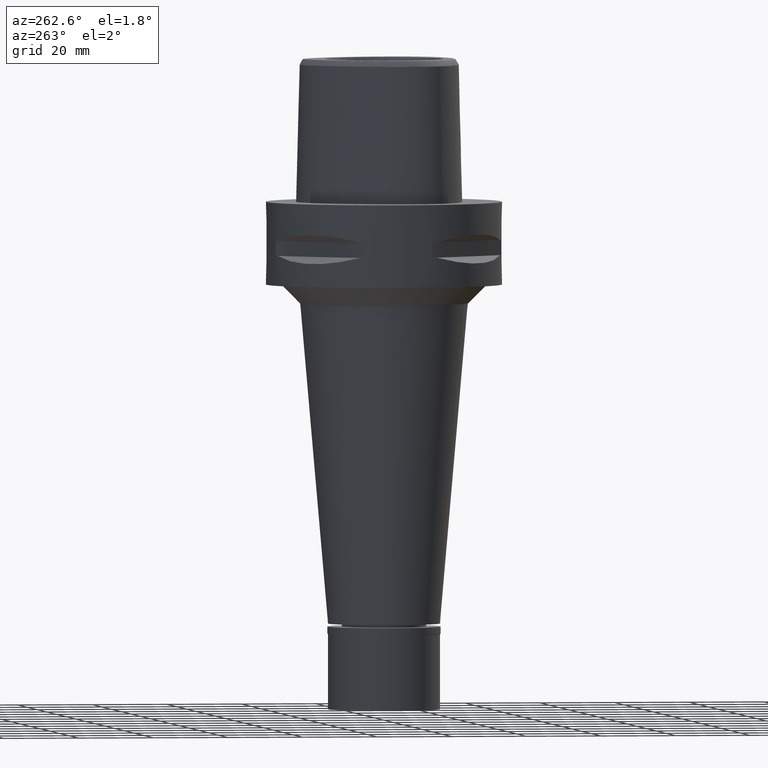
[diagram: clean part render]
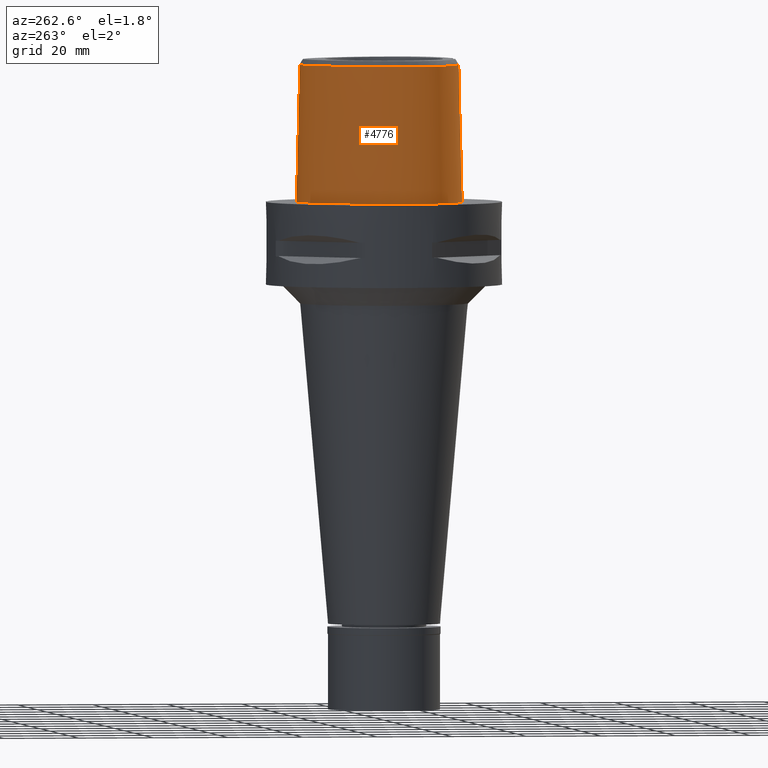
[diagram: same view with one face highlighted and labeled with its STEP entity id]
A machine part, auxiliary view. The second image highlights one B-rep face of the part: STEP entity #4776.
In plain terms, the highlighted face is a freeform B-spline surface patch.
Its self-contained STEP definition (entity closure, byte-faithful):
#2 = CARTESIAN_POINT ( 'NONE',  ( -2.696415149898497621, -20.10825975497923679, 18.52316981035199817 ) ) ;
#16 = CARTESIAN_POINT ( 'NONE',  ( -18.89485259573000064, -12.27684360070000125, 37.25233122954000464 ) ) ;
#38 = CARTESIAN_POINT ( 'NONE',  ( -10.75753574118999900, 19.18839676113000081, -0.7304378672458999855 ) ) ;
#46 = CARTESIAN_POINT ( 'NONE',  ( -1.222079501497006504, -20.16967619644332643, 19.36182732690497943 ) ) ;
#58 = CARTESIAN_POINT ( 'NONE',  ( -4.750826088121999469, 21.65775772739999638, 37.25233122954000464 ) ) ;
#66 = CARTESIAN_POINT ( 'NONE',  ( -3.686560471766106684, -20.05088322548401791, 17.17709135335207904 ) ) ;
#79 = CARTESIAN_POINT ( 'NONE',  ( -0.7901461696973771653, 22.56201478746648448, 36.52186244848002872 ) ) ;
#83 = CARTESIAN_POINT ( 'NONE',  ( -19.66427015006999923, -12.83600704949000004, -0.7304378672458999855 ) ) ;
#98 = CARTESIAN_POINT ( 'NONE',  ( -3.744859968352620250, -20.12555785049274348, 13.95773689203772960 ) ) ;
#110 = ORIENTED_EDGE ( 'NONE', *, *, #2453, .T. ) ;
#111 = CARTESIAN_POINT ( 'NONE',  ( -6.175998544962999048, -19.37631763026000087, 37.25233122954000464 ) ) ;
#120 = CARTESIAN_POINT ( 'NONE',  ( -3.388781880797233637, -20.17907268769692308, 13.28211842279118393 ) ) ;
#131 = CARTESIAN_POINT ( 'NONE',  ( -6.344715577530000594, -20.31619965430999741, -0.7304378672458999855 ) ) ;
#141 = CARTESIAN_POINT ( 'NONE',  ( -3.377353639916970796, -20.18061854612786377, 13.26476903757086845 ) ) ;
#144 = CARTESIAN_POINT ( 'NONE',  ( -1.251533273949746894, -19.88005341379766122, 31.80000012753028571 ) ) ;
#153 = CARTESIAN_POINT ( 'NONE',  ( -6.288476566674999546, -20.00290564628999945, 11.93048516502000034 ) ) ;
#160 = EDGE_CURVE ( 'NONE', #1015, #3632, #1603, .T. ) ;
#167 = CARTESIAN_POINT ( 'NONE',  ( -3.862607746689350474, -20.10460055501470578, 14.28038032241866873 ) ) ;
#173 = CARTESIAN_POINT ( 'NONE',  ( -2.503154198992743051, -19.81241979316217439, 31.80000012753028571 ) ) ;
#190 = CARTESIAN_POINT ( 'NONE',  ( -3.755562140673116556, -20.12374194796142390, 13.98397501487587746 ) ) ;
#199 = CARTESIAN_POINT ( 'NONE',  ( -16.95889172207992246, -15.67838866697177735, 2.483871594191090770E-07 ) ) ;
#203 = CARTESIAN_POINT ( 'NONE',  ( -14.36818022355000046, -16.67825710904000047, 24.59140819727999983 ) ) ;
#354 = CARTESIAN_POINT ( 'NONE',  ( -7.554098293773000222E-12, -20.67499999999999716, 5.802765675373999636E-14 ) ) ;
#368 = CARTESIAN_POINT ( 'NONE',  ( -4.987110641277000767, 22.24795274030999792, 11.93048516502000034 ) ) ;
#378 = CARTESIAN_POINT ( 'NONE',  ( -0.2473412322776364636, -20.18628283968999781, 19.55000000000000071 ) ) ;
#390 = CARTESIAN_POINT ( 'NONE',  ( 0.4441906931527999647, 22.53710756570000129, 37.25233122954000464 ) ) ;
#398 = CARTESIAN_POINT ( 'NONE',  ( -3.738021026999630347, -20.04832921641926546, 17.05876513949562678 ) ) ;
#416 = CARTESIAN_POINT ( 'NONE',  ( -5.105252917855000128, 22.54305024677000091, -0.7304378672458999855 ) ) ;
#429 = CARTESIAN_POINT ( 'NONE',  ( -1.768917262170793814, -20.15190475906382161, 19.14568281053294996 ) ) ;
#441 = CARTESIAN_POINT ( 'NONE',  ( -10.14358055024000116, 18.45723393221999942, 37.25233122954000464 ) ) ;
#449 = CARTESIAN_POINT ( 'NONE',  ( -2.857836109605272679, -20.09902107152586126, 18.36973246307368157 ) ) ;
#460 = CARTESIAN_POINT ( 'NONE',  ( -7.108589416785072501, 20.52412325828678874, 36.52186244848002872 ) ) ;
#463 = CARTESIAN_POINT ( 'NONE',  ( -21.26836735500999964, -8.910752227549000537, 11.93048516502000034 ) ) ;
#473 = CARTESIAN_POINT ( 'NONE',  ( -4.001055636211795274, -20.04208398455366336, 16.14154222857165522 ) ) ;
#489 = CARTESIAN_POINT ( 'NONE',  ( 2.041042029990999821E-08, -19.88004246002000031, 31.80000004972000127 ) ) ;
#505 = CARTESIAN_POINT ( 'NONE',  ( -3.438474044888220948, -20.17226853620289262, 13.35950353148342629 ) ) ;
#529 = CARTESIAN_POINT ( 'NONE',  ( -3.788010122577050609, -20.11815763408466040, 14.06624340820800256 ) ) ;
#551 = CARTESIAN_POINT ( 'NONE',  ( -3.215358272888210855, -20.20174660046934889, 13.03391498473856558 ) ) ;
#558 = CARTESIAN_POINT ( 'NONE',  ( -21.97832647171494003, -0.2810937510864339739, 2.483871594191090770E-07 ) ) ;
#561 = CARTESIAN_POINT ( 'NONE',  ( -21.14970188363479053, -6.717195958887645091, 36.52186244848002872 ) ) ;
#567 = ORIENTED_EDGE ( 'NONE', *, *, #1986, .T. ) ;
#594 = CARTESIAN_POINT ( 'NONE',  ( 0.4479792473561999833, -20.05810136994000104, 24.59140819727999983 ) ) ;
#654 = B_SPLINE_CURVE_WITH_KNOTS ( 'NONE', 3,
 ( #1364, #144, #173, #2922 ),
 .UNSPECIFIED., .F., .F.,
 ( 4, 4 ),
 ( 0.0000000000000000000, 1.000000000000000000 ),
 .UNSPECIFIED. ) ;
#690 = ORIENTED_EDGE ( 'NONE', *, *, #4559, .T. ) ;
#722 = CARTESIAN_POINT ( 'NONE',  ( 0.7042335231630000303, 23.15549812958000331, 11.93048516502000034 ) ) ;
#754 = CARTESIAN_POINT ( 'NONE',  ( -21.68301094665999784, -0.3332744150445000053, 11.93048516502000034 ) ) ;
#766 = CARTESIAN_POINT ( 'NONE',  ( -2.141634863661368460, -20.13611892945429815, 18.93776449056523248 ) ) ;
#781 = CARTESIAN_POINT ( 'NONE',  ( -13.69241955327999882, 15.03666371597999962, 37.25233122954000464 ) ) ;
#789 = CARTESIAN_POINT ( 'NONE',  ( -3.704467467891571886, -20.04996865237282222, 17.13733399074459030 ) ) ;
#806 = CARTESIAN_POINT ( 'NONE',  ( -20.76670355358000108, 4.663413655593999785, -0.7304378672458999855 ) ) ;
#827 = ORIENTED_EDGE ( 'NONE', *, *, #3703, .F. ) ;
#834 = CARTESIAN_POINT ( 'NONE',  ( -7.099337617061999950, 20.50831363474999947, 37.25233122954000464 ) ) ;
#845 = CARTESIAN_POINT ( 'NONE',  ( -1.320565687274587896, -20.16697761691573376, 19.32976498246027575 ) ) ;
#859 = CARTESIAN_POINT ( 'NONE',  ( -0.5657070178351000234, 22.56734879639000013, 37.25233122954000464 ) ) ;
#871 = CARTESIAN_POINT ( 'NONE',  ( -3.637738201363999835, -19.56971413236999879, 36.52186244848000030 ) ) ;
#913 = CARTESIAN_POINT ( 'NONE',  ( 0.4520368072134999804, -20.37458452970999900, 11.93048516502000034 ) ) ;
#925 = CARTESIAN_POINT ( 'NONE',  ( -3.024127618930173345, -20.22444760030267119, 12.80466032897661499 ) ) ;
#933 = CARTESIAN_POINT ( 'NONE',  ( -22.05732873705026265, -6.847636717862386924, 2.483871594191090770E-07 ) ) ;
#938 = CARTESIAN_POINT ( 'NONE',  ( 0.6840430854468000366, -20.68668155455999980, -0.7304378672458999855 ) ) ;
#946 = CARTESIAN_POINT ( 'NONE',  ( -2.945118222697316490, -20.23335776654016271, 12.71958560101062474 ) ) ;
#954 = CARTESIAN_POINT ( 'NONE',  ( -14.22011356156141382, -16.41829364186389029, 36.52186244848002872 ) ) ;
#958 = EDGE_CURVE ( 'NONE', #3691, #4031, #3380, .T. ) ;
#979 = CARTESIAN_POINT ( 'NONE',  ( -20.74942740292559762, 4.657187497882550709, 2.483871594191090770E-07 ) ) ;
#1001 = CARTESIAN_POINT ( 'NONE',  ( -1.592612062467924749, -20.34460894491102678, 11.77623291199328115 ) ) ;
#1014 = CARTESIAN_POINT ( 'NONE',  ( -2.113823672695231526, -20.67499999378846454, 2.483871594191090770E-07 ) ) ;
#1015 = VERTEX_POINT ( 'NONE', #1847 ) ;
#1143 = EDGE_LOOP ( 'NONE', ( #2945, #827, #2549, #110, #4122, #690, #4586, #567 ) ) ;
#1163 = CARTESIAN_POINT ( 'NONE',  ( -3.724287987559554924, -20.04899117660404073, 17.09139312267753041 ) ) ;
#1181 = CARTESIAN_POINT ( 'NONE',  ( -20.36913758053999857, -10.35391836281000089, 24.59140819727999983 ) ) ;
#1193 = CARTESIAN_POINT ( 'NONE',  ( -1.944872162930869397, -20.14473830020673617, 19.05307826098890089 ) ) ;
#1196 = VERTEX_POINT ( 'NONE', #2676 ) ;
#1207 = CARTESIAN_POINT ( 'NONE',  ( -0.5985508145726999851, 23.20171270144999909, 11.93048516502000034 ) ) ;
#1215 = CARTESIAN_POINT ( 'NONE',  ( -2.218923952808330213, -20.13252298611807234, 18.88809933006111308 ) ) ;
#1228 = CARTESIAN_POINT ( 'NONE',  ( -20.09084467959999998, -11.59945458344000002, 11.93048516502000034 ) ) ;
#1254 = CARTESIAN_POINT ( 'NONE',  ( -13.70645028111298380, 15.04851272300510345, 36.52186244848002872 ) ) ;
#1255 = CARTESIAN_POINT ( 'NONE',  ( -10.34823228055999955, 18.70095487519000343, 24.59140819727999983 ) ) ;
#1265 = CARTESIAN_POINT ( 'NONE',  ( -1.543048130379650829, -20.15993798682084304, 19.24453660913642494 ) ) ;
#1275 = CARTESIAN_POINT ( 'NONE',  ( -16.39211280192303732, -14.95758113319121918, 36.52186244848002872 ) ) ;
#1278 = CARTESIAN_POINT ( 'NONE',  ( -21.36961487273000060, -0.3886498146834000411, 24.59140819727999983 ) ) ;
#1291 = CARTESIAN_POINT ( 'NONE',  ( -3.698122373793031770, -20.13343971463974924, 13.84482020408101555 ) ) ;
#1299 = CARTESIAN_POINT ( 'NONE',  ( -18.90964971338106082, -12.28759719904414460, 36.52186244848002872 ) ) ;
#1312 = CARTESIAN_POINT ( 'NONE',  ( -3.830499027157554970, -20.11062698623148393, 14.18153512544096806 ) ) ;
#1329 = CARTESIAN_POINT ( 'NONE',  ( -6.232237555819000185, -19.68961163828000238, 24.59140819727999983 ) ) ;
#1342 = CARTESIAN_POINT ( 'NONE',  ( -3.520475118947735460, -20.16064927175107968, 13.49656734865833840 ) ) ;
#1362 = CARTESIAN_POINT ( 'NONE',  ( -3.294464282139350164, -20.19175818983858051, 13.14063372506664606 ) ) ;
#1364 = CARTESIAN_POINT ( 'NONE',  ( 2.041042029990999821E-08, -19.88004246002000031, 31.80000004972000127 ) ) ;
#1374 = CARTESIAN_POINT ( 'NONE',  ( -11.02138175956000055, -18.31230442588000429, 24.59140819727999983 ) ) ;
#1385 = CARTESIAN_POINT ( 'NONE',  ( -1.678454493255880919, -20.33967188086236888, 11.81405957882842195 ) ) ;
#1394 = CARTESIAN_POINT ( 'NONE',  ( -11.23259756514371865, -18.89324218163431368, 2.483871594191090770E-07 ) ) ;
#1397 = CARTESIAN_POINT ( 'NONE',  ( -1.721503160415000160E-11, 22.56201468012000078, 36.52186680743999858 ) ) ;
#1433 = CARTESIAN_POINT ( 'NONE',  ( 0.4569144474111999643, 22.85341777274000208, 24.59140819727999983 ) ) ;
#1446 = CARTESIAN_POINT ( 'NONE',  ( -14.40795638481364982, 15.64093749597185123, 2.483871594191090770E-07 ) ) ;
#1456 = CARTESIAN_POINT ( 'NONE',  ( 0.6850314009299001139, 22.83959032778000164, 24.59140819727999983 ) ) ;
#1546 = CARTESIAN_POINT ( 'NONE',  ( -1.721503160415000160E-11, 22.56201468012000078, 36.52186680743999858 ) ) ;
#1559 = CARTESIAN_POINT ( 'NONE',  ( -17.53318565155000286, 10.12278922552999916, 24.59140819727999983 ) ) ;
#1591 = CARTESIAN_POINT ( 'NONE',  ( -14.42198652363000022, 15.65278600556999855, -0.7304378672458999855 ) ) ;
#1603 = LINE ( 'NONE', #4221, #2378 ) ;
#1613 = CARTESIAN_POINT ( 'NONE',  ( -20.96392231289000208, -8.820258258568999921, 24.59140819727999983 ) ) ;
#1623 = CARTESIAN_POINT ( 'NONE',  ( -2.236225399043144435, -20.13170464962382411, 18.87669531694537284 ) ) ;
#1634 = CARTESIAN_POINT ( 'NONE',  ( -22.26285557009000016, -4.100361500021000083, -0.7304378672458999855 ) ) ;
#1644 = CARTESIAN_POINT ( 'NONE',  ( 0.0000000000000000000, -20.18628283968999781, 19.55000000000000071 ) ) ;
#1663 = CARTESIAN_POINT ( 'NONE',  ( -1.721503160415000160E-11, 22.56201468012000078, 36.52186680743999858 ) ) ;
#1666 = CARTESIAN_POINT ( 'NONE',  ( -18.58171406929000113, -14.18198046874000084, -0.7304378672458999855 ) ) ;
#1676 = CARTESIAN_POINT ( 'NONE',  ( -4.027530768677416440, -20.06783249596207597, 14.99855479653706603 ) ) ;
#1697 = CARTESIAN_POINT ( 'NONE',  ( -1.758544761682761859, -20.33485355119278992, 11.85123508312911866 ) ) ;
#1707 = CARTESIAN_POINT ( 'NONE',  ( -1.836486879113999882, -19.76356434131000128, 37.25233122954000464 ) ) ;
#1720 = CARTESIAN_POINT ( 'NONE',  ( -2.904838724128873562, -20.23782704190353243, 12.67778573503155748 ) ) ;
#1729 = CARTESIAN_POINT ( 'NONE',  ( 2.041042029990999821E-08, -19.88004246002000031, 31.80000004972000127 ) ) ;
#1743 = CARTESIAN_POINT ( 'NONE',  ( -3.089131642920993404, -20.21685897408069010, 12.88004451868239464 ) ) ;
#1750 = CARTESIAN_POINT ( 'NONE',  ( -20.34961798018169787, -11.74885741876239997, 2.483871594191090770E-07 ) ) ;
#1752 = CARTESIAN_POINT ( 'NONE',  ( 6.840904005482245240E-09, -20.08420636276312976, 23.63333344114113288 ) ) ;
#1764 = CARTESIAN_POINT ( 'NONE',  ( -1.812541018724384001, -20.33144879143460670, 11.87771303033585291 ) ) ;
#1772 = CARTESIAN_POINT ( 'NONE',  ( -14.67337964111153426, -17.21410155709229883, 2.483871594191090770E-07 ) ) ;
#1808 = CARTESIAN_POINT ( 'NONE',  ( 0.4696382016694999884, 23.16972797979000021, 11.93048516502000034 ) ) ;
#1847 = CARTESIAN_POINT ( 'NONE',  ( -9.433993878921999819E-13, -20.38876923348000147, 11.44999999999999929 ) ) ;
#1914 = CARTESIAN_POINT ( 'NONE',  ( -3.736722311398999796, -19.67781602443999844, 31.80000000000000071 ) ) ;
#1931 = CARTESIAN_POINT ( 'NONE',  ( -21.76083705146000113, -6.805026034460000872, 11.93048516502000034 ) ) ;
#1957 = CARTESIAN_POINT ( 'NONE',  ( -0.6149727129413998794, 23.51889465398999945, -0.7304378672458999855 ) ) ;
#1968 = CARTESIAN_POINT ( 'NONE',  ( -3.848403410399269031, -20.04310851184509801, 16.79149714040343966 ) ) ;
#1985 = CARTESIAN_POINT ( 'NONE',  ( -21.99640702058999864, -0.2778990154055000494, -0.7304378672458999855 ) ) ;
#1986 = EDGE_CURVE ( 'NONE', #4031, #3632, #4643, .T. ) ;
#1994 = CARTESIAN_POINT ( 'NONE',  ( -2.360389010909421881, -20.12578017861218527, 18.79373387522312200 ) ) ;
#2005 = CARTESIAN_POINT ( 'NONE',  ( -20.16779720122000086, 4.447573594992999979, 24.59140819727999983 ) ) ;
#2013 = CARTESIAN_POINT ( 'NONE',  ( -3.081149392581320701, -20.08583124627751459, 18.14629112889923235 ) ) ;
#2025 = CARTESIAN_POINT ( 'NONE',  ( -4.757642277158428357, 21.67478330407306686, 36.52186244848002872 ) ) ;
#2028 = CARTESIAN_POINT ( 'NONE',  ( -20.65947727076000007, -8.729764289590001169, 37.25233122954000464 ) ) ;
#2038 = CARTESIAN_POINT ( 'NONE',  ( -4.019649019913691390, -20.04316019033999652, 16.01163126942445913 ) ) ;
#2055 = CARTESIAN_POINT ( 'NONE',  ( 6.820926584186569121E-09, -19.98212988583463812, 27.71666688228196307 ) ) ;
#2058 = CARTESIAN_POINT ( 'NONE',  ( -16.97022731400999973, -15.69280483484999955, -0.7304378672458999855 ) ) ;
#2070 = CARTESIAN_POINT ( 'NONE',  ( -1.975954942202938325, -20.32065689222462979, 11.96260358356428455 ) ) ;
#2092 = CARTESIAN_POINT ( 'NONE',  ( -3.748882549353759863, -20.12487725615873302, 13.96753193210146193 ) ) ;
#2102 = CARTESIAN_POINT ( 'NONE',  ( -1.870070488024999866, -20.39691384964999799, 11.93048516502000034 ) ) ;
#2114 = CARTESIAN_POINT ( 'NONE',  ( -9.433993878921999819E-13, -20.38876923348000147, 11.44999999999999929 ) ) ;
#2126 = CARTESIAN_POINT ( 'NONE',  ( -21.07430010672754150, -0.4408303445193105241, 36.52186244848002872 ) ) ;
#2144 = CARTESIAN_POINT ( 'NONE',  ( -2.870809693610273605, -20.24156730632854817, 12.64324605246994793 ) ) ;
#2153 = CARTESIAN_POINT ( 'NONE',  ( -21.55524825412133083, -8.996025388850016569, 2.483871594191090770E-07 ) ) ;
#2158 = CARTESIAN_POINT ( 'NONE',  ( -16.57726026073000014, -15.19304451834000069, 24.59140819727999983 ) ) ;
#2190 = CARTESIAN_POINT ( 'NONE',  ( -3.671249123513567802, -19.60525173594972514, 34.94790829898666829 ) ) ;
#2316 = CARTESIAN_POINT ( 'NONE',  ( -17.80867301941000136, 10.28184205001000073, 11.93048516502000034 ) ) ;
#2325 = CARTESIAN_POINT ( 'NONE',  ( -3.623054736483445559, -20.05423874947322105, 17.31100359226983443 ) ) ;
#2338 = CARTESIAN_POINT ( 'NONE',  ( -19.54161154040999904, -11.28235468148000109, 37.25233122954000464 ) ) ;
#2347 = CARTESIAN_POINT ( 'NONE',  ( -3.258446753586562661, -20.07522384658319936, 17.91983021284167066 ) ) ;
#2361 = CARTESIAN_POINT ( 'NONE',  ( -7.580410842533000348, 21.33037926697000231, -0.7304378672458999855 ) ) ;
#2378 = VECTOR ( 'NONE', #4717, 1000.000000000000114 ) ;
#2386 = CARTESIAN_POINT ( 'NONE',  ( -19.15132511383999869, -12.46323141696999848, 24.59140819727999983 ) ) ;
#2394 = CARTESIAN_POINT ( 'NONE',  ( -2.852856104024932726, -20.09931387729060859, 18.37467926461876644 ) ) ;
#2408 = CARTESIAN_POINT ( 'NONE',  ( -21.57281239714000165, -9.001246196527999288, -0.7304378672458999855 ) ) ;
#2417 = CARTESIAN_POINT ( 'NONE',  ( -3.732557508995414608, -20.04859144260191783, 17.07180291399404837 ) ) ;
#2434 = CARTESIAN_POINT ( 'NONE',  ( -11.13012653184999934, -18.61140109523000064, 11.93048516502000034 ) ) ;
#2453 = EDGE_CURVE ( 'NONE', #3068, #3853, #654, .T. ) ;
#2464 = CARTESIAN_POINT ( 'NONE',  ( -10.91263698726999998, -18.01320775652999728, 37.25233122954000464 ) ) ;
#2475 = CARTESIAN_POINT ( 'NONE',  ( -3.646271025386952136, -20.14180172674266345, 13.73229968810843893 ) ) ;
#2480 = CARTESIAN_POINT ( 'NONE',  ( -20.93173251642900823, -10.60431640372373607, 2.483871594191090770E-07 ) ) ;
#2485 = CARTESIAN_POINT ( 'NONE',  ( -14.21104784857000070, -16.40237679636999601, 37.25233122954000464 ) ) ;
#2494 = CARTESIAN_POINT ( 'NONE',  ( -4.049848995936167206, -20.05861656952081873, 15.25314035233473398 ) ) ;
#2502 = CARTESIAN_POINT ( 'NONE',  ( -20.09619618741553992, -10.23243843868202418, 36.52186244848002872 ) ) ;
#2514 = CARTESIAN_POINT ( 'NONE',  ( -3.466483550187511753, -20.16833646136333513, 13.40542637771374856 ) ) ;
#2544 = CARTESIAN_POINT ( 'NONE',  ( -0.5047993661863107162, -20.38876923348000147, 11.44999999999999751 ) ) ;
#2549 = ORIENTED_EDGE ( 'NONE', *, *, #4591, .F. ) ;
#2551 = CARTESIAN_POINT ( 'NONE',  ( -7.554098293773000222E-12, -20.67499999999999716, 5.802765675373999636E-14 ) ) ;
#2612 = CARTESIAN_POINT ( 'NONE',  ( 0.6658292786969000066, 22.52368252598999732, 37.25233122954000464 ) ) ;
#2676 = CARTESIAN_POINT ( 'NONE',  ( 0.0000000000000000000, -20.18628283968999781, 19.55000000000000071 ) ) ;
#2699 = CARTESIAN_POINT ( 'NONE',  ( -1.025211814383784725, -20.17465818941732891, 19.42048404905371584 ) ) ;
#2712 = CARTESIAN_POINT ( 'NONE',  ( -20.07948473933999978, -10.22500055825999965, 37.25233122954000464 ) ) ;
#2717 = CARTESIAN_POINT ( 'NONE',  ( 4.563465393014999971E-11, 23.47499999999000053, 5.514107688971999147E-14 ) ) ;
#2723 = CARTESIAN_POINT ( 'NONE',  ( -2.823299992936001868, -20.10104229143708565, 18.40378355436401847 ) ) ;
#2736 = CARTESIAN_POINT ( 'NONE',  ( -14.17879753351000005, 15.44741190903999950, 11.93048516502000034 ) ) ;
#2759 = CARTESIAN_POINT ( 'NONE',  ( -2.438150574154000161, 22.68791625299000358, 24.59140819727999983 ) ) ;
#2770 = CARTESIAN_POINT ( 'NONE',  ( -2.841055161951131058, -20.10000556631501567, 18.38634273631047833 ) ) ;
#2789 = CARTESIAN_POINT ( 'NONE',  ( -10.15538788052766073, 18.47129535093935004, 36.52186244848002872 ) ) ;
#2790 = CARTESIAN_POINT ( 'NONE',  ( -21.62788386333999924, -4.104079499281999333, 24.59140819727999983 ) ) ;
#2799 = CARTESIAN_POINT ( 'NONE',  ( -3.925407708632545400, -20.04099055260236284, 16.53138977182225133 ) ) ;
#2812 = CARTESIAN_POINT ( 'NONE',  ( -4.868968364699999718, 21.95285523385999937, 24.59140819727999983 ) ) ;
#2823 = CARTESIAN_POINT ( 'NONE',  ( -2.887412005234945234, -20.23974548682596719, 12.66003157092543674 ) ) ;
#2834 = CARTESIAN_POINT ( 'NONE',  ( -21.32871527669728806, -4.105831244394278379, 36.52186244848002872 ) ) ;
#2837 = CARTESIAN_POINT ( 'NONE',  ( 0.6657744276083999990, -19.73734233519000369, 37.25233122954000464 ) ) ;
#2847 = CARTESIAN_POINT ( 'NONE',  ( -1.554881956805006515, -20.34669101430224813, 11.76035872671680593 ) ) ;
#2863 = CARTESIAN_POINT ( 'NONE',  ( -19.55745547456363553, -11.29150218116343041, 36.52186244848002872 ) ) ;
#2866 = CARTESIAN_POINT ( 'NONE',  ( 0.6779535328339999500, -20.37023514810000080, 11.93048516502000034 ) ) ;
#2877 = CARTESIAN_POINT ( 'NONE',  ( -3.408875187706379872, -20.17633333109262495, 13.31312751154035645 ) ) ;
#2882 = CARTESIAN_POINT ( 'NONE',  ( -0.8548392418636427958, 23.47499999379704150, 2.483871594191090770E-07 ) ) ;
#2884 = CARTESIAN_POINT ( 'NONE',  ( -3.637738201363999835, -19.56971413236999879, 36.52186244848000030 ) ) ;
#2887 = CARTESIAN_POINT ( 'NONE',  ( -1.886862292479999814, -20.71358860380999900, -0.7304378672458999855 ) ) ;
#2919 = CARTESIAN_POINT ( 'NONE',  ( -4.050018014422888335, -20.05167593067614717, 15.52805627100565644 ) ) ;
#2922 = CARTESIAN_POINT ( 'NONE',  ( -3.736722311398999796, -19.67781602443999844, 31.80000000000000071 ) ) ;
#2930 = CARTESIAN_POINT ( 'NONE',  ( -6.341471018108045143, -20.29812499385486291, 2.483871594191090770E-07 ) ) ;
#2945 = ORIENTED_EDGE ( 'NONE', *, *, #160, .F. ) ;
#2959 = CARTESIAN_POINT ( 'NONE',  ( -2.564517725680427684, 23.29328124389028076, 2.483871594191090770E-07 ) ) ;
#3051 = CARTESIAN_POINT ( 'NONE',  ( 0.7234356453960000266, 23.47140593137000053, -0.7304378672458999855 ) ) ;
#3068 = VERTEX_POINT ( 'NONE', #1729 ) ;
#3085 = CARTESIAN_POINT ( 'NONE',  ( -1.435263460292240945, -20.16346600381253396, 19.28743623777307903 ) ) ;
#3101 = CARTESIAN_POINT ( 'NONE',  ( -18.08416038725999897, 10.44089487449000053, -0.7304378672458999855 ) ) ;
#3129 = CARTESIAN_POINT ( 'NONE',  ( -18.12052891647000052, -13.74516015646999989, 24.59140819727999983 ) ) ;
#3138 = CARTESIAN_POINT ( 'NONE',  ( -0.5036866637238499589, -20.18406862059044471, 19.52728785669997080 ) ) ;
#3149 = CARTESIAN_POINT ( 'NONE',  ( -20.94844326295000414, -10.61175397189999892, -0.7304378672458999855 ) ) ;
#3159 = CARTESIAN_POINT ( 'NONE',  ( -1.492522727688411210, -20.16161937968067974, 19.26502569008748011 ) ) ;
#3175 = CARTESIAN_POINT ( 'NONE',  ( -17.27359245833155654, 9.972912913898687393, 36.52186244848002872 ) ) ;
#3176 = CARTESIAN_POINT ( 'NONE',  ( -10.55288401086999883, 18.94467581816000035, 11.93048516502000034 ) ) ;
#3189 = CARTESIAN_POINT ( 'NONE',  ( -3.740129524201636801, -20.04822853724977705, 17.05370687140990427 ) ) ;
#3208 = CARTESIAN_POINT ( 'NONE',  ( -21.44619280714000098, -6.759806532765999521, 24.59140819727999983 ) ) ;
#3218 = CARTESIAN_POINT ( 'NONE',  ( -3.765489374949922308, -20.12204791086962530, 14.00864527312732832 ) ) ;
#3231 = CARTESIAN_POINT ( 'NONE',  ( 0.6718639802211999745, -20.05378874165000269, 24.59140819727999983 ) ) ;
#3242 = CARTESIAN_POINT ( 'NONE',  ( -2.647727988112003494, -20.26593689667652853, 12.42012271609039686 ) ) ;
#3253 = CARTESIAN_POINT ( 'NONE',  ( -4.467522189395983112, -19.48130287050733145, 36.52186244848002872 ) ) ;
#3267 = CARTESIAN_POINT ( 'NONE',  ( -1.572984596533151036, -20.34569619827904674, 11.76794029727449953 ) ) ;
#3286 = CARTESIAN_POINT ( 'NONE',  ( -11.23887130413999991, -18.91049776457999698, -0.7304378672458999855 ) ) ;
#3329 = CARTESIAN_POINT ( 'NONE',  ( -14.68244497352000089, -17.23001773438999962, -0.7304378672458999855 ) ) ;
#3354 = CARTESIAN_POINT ( 'NONE',  ( -7.571159431204942614, 21.31457030712817513, 2.483871594191090770E-07 ) ) ;
#3378 = CARTESIAN_POINT ( 'NONE',  ( -18.06826687986402646, 10.43171874688041001, 2.483871594191090770E-07 ) ) ;
#3380 = LINE ( 'NONE', #1397, #4428 ) ;
#3490 = CARTESIAN_POINT ( 'NONE',  ( -2.568271206742999802, 23.31126238853000032, -0.7304378672458999855 ) ) ;
#3499 = CARTESIAN_POINT ( 'NONE',  ( -1.517038990532515896, -20.16080850842839922, 19.25515252244225906 ) ) ;
#3513 = CARTESIAN_POINT ( 'NONE',  ( -13.93560854340000077, 15.24203781250999867, 24.59140819727999983 ) ) ;
#3527 = CARTESIAN_POINT ( 'NONE',  ( -3.538328569009167701, -20.05892019842420027, 17.47427695038233608 ) ) ;
#3540 = CARTESIAN_POINT ( 'NONE',  ( -22.07548129577999774, -6.850245536155000536, -0.7304378672458999855 ) ) ;
#3549 = CARTESIAN_POINT ( 'NONE',  ( -2.467128207654216698, -20.12044499745018200, 18.71456023906641519 ) ) ;
#3561 = CARTESIAN_POINT ( 'NONE',  ( -7.420053100709999683, 21.05635738955999869, 11.93048516502000034 ) ) ;
#3570 = CARTESIAN_POINT ( 'NONE',  ( -3.474550157063431843, -20.06258684786148194, 17.58509941784212316 ) ) ;
#3582 = CARTESIAN_POINT ( 'NONE',  ( -2.376843896516407373, 22.39422508474381246, 36.52186244848002872 ) ) ;
#3585 = CARTESIAN_POINT ( 'NONE',  ( -19.81622811000000084, -11.44090463245999878, 24.59140819727999983 ) ) ;
#3598 = CARTESIAN_POINT ( 'NONE',  ( -4.038031914720691340, -20.04584209172336529, 15.81781984752944936 ) ) ;
#3619 = CARTESIAN_POINT ( 'NONE',  ( -16.77374378736999816, -15.44292467660000057, 11.93048516502000034 ) ) ;
#3630 = CARTESIAN_POINT ( 'NONE',  ( -4.049663826248573351, -20.05088590020230299, 15.56119206774690866 ) ) ;
#3632 = VERTEX_POINT ( 'NONE', #354 ) ;
#3648 = CARTESIAN_POINT ( 'NONE',  ( -4.044848056823934002, -20.04744994059100804, 15.72117637690397629 ) ) ;
#3652 = VERTEX_POINT ( 'NONE', #871 ) ;
#3689 = CARTESIAN_POINT ( 'NONE',  ( -19.88562090098589152, 4.345879983792489298, 36.52186244848002872 ) ) ;
#3691 = VERTEX_POINT ( 'NONE', #1546 ) ;
#3703 = EDGE_CURVE ( 'NONE', #1196, #1015, #4941, .T. ) ;
#3712 = CARTESIAN_POINT ( 'NONE',  ( -18.56841064689633569, -14.16937987852455727, 2.483871594191090770E-07 ) ) ;
#3716 = CARTESIAN_POINT ( 'NONE',  ( 0.4439216874990000172, -19.74161821016999951, 37.25233122954000464 ) ) ;
#3732 = CARTESIAN_POINT ( 'NONE',  ( 4.563465393014999971E-11, 23.47499999999000053, 5.514107688971999147E-14 ) ) ;
#3749 = CARTESIAN_POINT ( 'NONE',  ( -3.704239276368590961, -19.64128040965313460, 33.37395414949332917 ) ) ;
#3764 = DIRECTION ( 'NONE',  ( 1.720340780425959448E-12, 0.02499051290962944413, -0.9996876883629776112 ) ) ;
#3780 = CARTESIAN_POINT ( 'NONE',  ( -3.736722311398999796, -19.67781602443999844, 31.80000000000000071 ) ) ;
#3806 = B_SPLINE_SURFACE_WITH_KNOTS ( 'NONE', 3, 3, ( 
 ( #3051, #722, #1456, #2612 ),
 ( #4262, #1808, #1433, #390 ),
 ( #1957, #1207, #3879, #859 ),
 ( #3490, #4779, #2759, #4366 ),
 ( #416, #368, #2812, #58 ),
 ( #2361, #3561, #3952, #834 ),
 ( #38, #3176, #1255, #441 ),
 ( #1591, #2736, #3513, #781 ),
 ( #3101, #2316, #1559, #4315 ),
 ( #806, #3975, #2005, #3929 ),
 ( #1985, #754, #1278, #4750 ),
 ( #1634, #4681, #2790, #5062 ),
 ( #3540, #1931, #3208, #4707 ),
 ( #2408, #463, #1613, #2028 ),
 ( #3149, #4727, #1181, #2712 ),
 ( #4289, #1228, #3585, #2338 ),
 ( #83, #3903, #2386, #16 ),
 ( #1666, #4344, #3129, #4032 ),
 ( #2058, #3619, #2158, #4442 ),
 ( #3329, #4894, #203, #2485 ),
 ( #3286, #2434, #1374, #2464 ),
 ( #131, #153, #1329, #111 ),
 ( #2887, #2102, #4053, #1707 ),
 ( #4485, #913, #594, #3716 ),
 ( #938, #2866, #3231, #2837 ) ),
 .UNSPECIFIED., .F., .F., .F.,
 ( 4, 1, 1, 1, 1, 1, 1, 1, 1, 1, 1, 1, 1, 1, 1, 1, 1, 1, 1, 1, 1, 1, 4 ),
 ( 4, 4 ),
 ( -0.01173777939045999967, 0.0000000000000000000, 0.04166666666736999758, 0.08333333333399001175, 0.1250000000005999923, 0.1666666666673000119, 0.2500000000004999889, 0.3333333333337000215, 0.4166666666670000296, 0.5000000000002999823, 0.5416666666668999985, 0.5833333333335000148, 0.6250000000001000311, 0.6458333333333999837, 0.6666666666667999674, 0.6875000000001000311, 0.7083333333333000637, 0.7500000000000000000, 0.7916666666667000474, 0.8333333333332000326, 0.9166666666664999852, 1.000000000000000000, 1.008985696609000060 ),
 ( -3.546833538676000127E-09, 1.000000180887999912 ),
 .UNSPECIFIED. ) ;
#3853 = VERTEX_POINT ( 'NONE', #3780 ) ;
#3879 = CARTESIAN_POINT ( 'NONE',  ( -0.5821289162039000598, 22.88453074891999961, 24.59140819727999983 ) ) ;
#3903 = CARTESIAN_POINT ( 'NONE',  ( -19.40779763196000118, -12.64961923323000015, 11.93048516502000034 ) ) ;
#3929 = CARTESIAN_POINT ( 'NONE',  ( -19.86834402504000252, 4.339653564693000121, 37.25233122954000464 ) ) ;
#3934 = EDGE_CURVE ( 'NONE', #3652, #3853, #4637, .T. ) ;
#3942 = CARTESIAN_POINT ( 'NONE',  ( -1.656252726927804675, -20.15609978928700485, 19.19765142506503608 ) ) ;
#3952 = CARTESIAN_POINT ( 'NONE',  ( -7.259695358885999816, 20.78233551214999864, 24.59140819727999983 ) ) ;
#3962 = CARTESIAN_POINT ( 'NONE',  ( -2.621021505587177725, -20.11233874864635496, 18.58822781674975388 ) ) ;
#3973 = CARTESIAN_POINT ( 'NONE',  ( -7.300578999877369135, -19.07170748892179901, 36.52186244848002872 ) ) ;
#3975 = CARTESIAN_POINT ( 'NONE',  ( -20.46725037739999919, 4.555493625293999926, 11.93048516502000034 ) ) ;
#4012 = CARTESIAN_POINT ( 'NONE',  ( -4.048193638326267774, -20.04945813672258836, 15.62509932612174346 ) ) ;
#4031 = VERTEX_POINT ( 'NONE', #2717 ) ;
#4032 = CARTESIAN_POINT ( 'NONE',  ( -17.88993634006999756, -13.52675000034000163, 37.25233122954000464 ) ) ;
#4040 = CARTESIAN_POINT ( 'NONE',  ( -2.086814383358909897, -20.31269213283744079, 12.02647857452497782 ) ) ;
#4048 = CARTESIAN_POINT ( 'NONE',  ( -19.64947365360898601, -12.82525390258760112, 2.483871594191090770E-07 ) ) ;
#4053 = CARTESIAN_POINT ( 'NONE',  ( -1.853278683568999829, -20.08023909547999963, 24.59140819727999983 ) ) ;
#4062 = CARTESIAN_POINT ( 'NONE',  ( -1.559921522258880699, -20.34641501698339638, 11.76246137009506576 ) ) ;
#4071 = CARTESIAN_POINT ( 'NONE',  ( -20.67704215116071964, -8.734985316449176196, 36.52186244848002872 ) ) ;
#4122 = ORIENTED_EDGE ( 'NONE', *, *, #3934, .F. ) ;
#4221 = CARTESIAN_POINT ( 'NONE',  ( -9.433993878921999819E-13, -20.38876923348000147, 11.44999999999999929 ) ) ;
#4262 = CARTESIAN_POINT ( 'NONE',  ( 0.4823619559277999569, 23.48603818683000100, -0.7304378672458999855 ) ) ;
#4277 = CARTESIAN_POINT ( 'NONE',  ( -2.095753548412724765, -20.13818364214429835, 18.96577014705994912 ) ) ;
#4289 = CARTESIAN_POINT ( 'NONE',  ( -20.36546124919999912, -11.75800453442999860, -0.7304378672458999855 ) ) ;
#4299 = CARTESIAN_POINT ( 'NONE',  ( -3.649474620161969440, -20.05281468735705275, 17.25706831816531306 ) ) ;
#4315 = CARTESIAN_POINT ( 'NONE',  ( -17.25769828369000081, 9.963736401054999803, 37.25233122954000464 ) ) ;
#4344 = CARTESIAN_POINT ( 'NONE',  ( -18.35112149287999728, -13.96357031261000081, 11.93048516502000034 ) ) ;
#4354 = CARTESIAN_POINT ( 'NONE',  ( -0.8941136475783433291, -20.17742596329177118, 19.45229334933506848 ) ) ;
#4366 = CARTESIAN_POINT ( 'NONE',  ( -2.373090257858999852, 22.37624318521999811, 37.25233122954000464 ) ) ;
#4375 = CARTESIAN_POINT ( 'NONE',  ( -2.187955111050584822, -20.13397228737159850, 18.90818030783799841 ) ) ;
#4399 = CARTESIAN_POINT ( 'NONE',  ( -2.875757950341225389, -20.24102512592877190, 12.64823125461330733 ) ) ;
#4427 = CARTESIAN_POINT ( 'NONE',  ( -1.035503055403208972, -20.37488775911207739, 11.54570873351795335 ) ) ;
#4428 = VECTOR ( 'NONE', #3764, 999.9999999999998863 ) ;
#4442 = CARTESIAN_POINT ( 'NONE',  ( -16.38077673410000301, -14.94316436008999993, 37.25233122954000464 ) ) ;
#4451 = B_SPLINE_CURVE_WITH_KNOTS ( 'NONE', 3,
 ( #489, #2055, #1752, #4869 ),
 .UNSPECIFIED., .F., .F.,
 ( 4, 4 ),
 ( 0.0000000000000000000, 1.000000000000000000 ),
 .UNSPECIFIED. ) ;
#4452 = CARTESIAN_POINT ( 'NONE',  ( -2.421503357398448575, -20.28648737493420384, 12.24279215501701579 ) ) ;
#4457 = CARTESIAN_POINT ( 'NONE',  ( -5.098437014965430336, 22.52602538483874639, 2.483871594191090770E-07 ) ) ;
#4459 = CARTESIAN_POINT ( 'NONE',  ( -10.91891098965188789, -18.03046406390367906, 36.52186244848002872 ) ) ;
#4479 = CARTESIAN_POINT ( 'NONE',  ( -10.74572890657968749, 19.17433593271570302, 2.483871594191090770E-07 ) ) ;
#4485 = CARTESIAN_POINT ( 'NONE',  ( 0.4560943670707000019, -20.69106768949000141, -0.7304378672458999855 ) ) ;
#4499 = CARTESIAN_POINT ( 'NONE',  ( -1.638635025842608561, -20.34200884320521752, 11.79610711465544171 ) ) ;
#4503 = B_SPLINE_CURVE_WITH_KNOTS ( 'NONE', 3,
 ( #2884, #3253, #3973, #4459, #954, #1275, #4799, #1299, #2863, #2502, #4071, #561, #2834, #2126, #3689, #3175, #1254, #2789, #460, #2025, #3582, #79, #1663 ),
 .UNSPECIFIED., .F., .F.,
 ( 4, 1, 1, 1, 1, 1, 1, 1, 1, 1, 1, 1, 1, 1, 1, 1, 1, 1, 1, 1, 4 ),
 ( 0.0000000000000000000, 0.03580973941722938314, 0.1234633994701893611, 0.1672902294965115666, 0.2111170595230442426, 0.2549438895495767521, 0.2768573045626853135, 0.2987707195758991241, 0.3206841345892179618, 0.3425975496024316613, 0.3864243796288590604, 0.4302512096552865151, 0.4740780396817139697, 0.5617316997346739615, 0.6493853597876338979, 0.7370390198404888071, 0.8246926798933436054, 0.8685195099198762536, 0.9123463399463140888, 0.9561731699727626932, 1.000000000000000000 ),
 .UNSPECIFIED. ) ;
#4559 = EDGE_CURVE ( 'NONE', #3652, #3691, #4503, .T. ) ;
#4586 = ORIENTED_EDGE ( 'NONE', *, *, #958, .T. ) ;
#4591 = EDGE_CURVE ( 'NONE', #3068, #1196, #4451, .T. ) ;
#4634 = CARTESIAN_POINT ( 'NONE',  ( -3.637738201363999835, -19.56971413236999879, 36.52186244848000030 ) ) ;
#4637 = B_SPLINE_CURVE_WITH_KNOTS ( 'NONE', 3,
 ( #4634, #2190, #3749, #1914 ),
 .UNSPECIFIED., .F., .F.,
 ( 4, 4 ),
 ( 0.0000000000000000000, 1.000000000000000000 ),
 .UNSPECIFIED. ) ;
#4643 = B_SPLINE_CURVE_WITH_KNOTS ( 'NONE', 3,
 ( #3732, #2882, #2959, #4457, #3354, #4479, #1446, #3378, #979, #558, #4921, #933, #2153, #2480, #1750, #4048, #3712, #199, #1772, #1394, #2930, #1014, #2551 ),
 .UNSPECIFIED., .F., .F.,
 ( 4, 1, 1, 1, 1, 1, 1, 1, 1, 1, 1, 1, 1, 1, 1, 1, 1, 1, 1, 1, 4 ),
 ( 0.0000000000000000000, 0.04166666666736999758, 0.08333333333399001175, 0.1250000000005999923, 0.1666666666673000119, 0.2500000000004999889, 0.3333333333337000215, 0.4166666666670000296, 0.5000000000002999823, 0.5416666666668999985, 0.5833333333335000148, 0.6250000000001000311, 0.6458333333333999837, 0.6666666666667999674, 0.6875000000001000311, 0.7083333333333000637, 0.7500000000000000000, 0.7916666666667000474, 0.8333333333332000326, 0.9166666666664999852, 1.000000000000000000 ),
 .UNSPECIFIED. ) ;
#4667 = CARTESIAN_POINT ( 'NONE',  ( -2.004675599387941709, -20.14220382833398659, 19.01976680093504157 ) ) ;
#4681 = CARTESIAN_POINT ( 'NONE',  ( -21.94536971671000458, -4.102220499650999663, 11.93048516502000034 ) ) ;
#4707 = CARTESIAN_POINT ( 'NONE',  ( -21.13154856282000083, -6.714587031070999856, 37.25233122954000464 ) ) ;
#4716 = CARTESIAN_POINT ( 'NONE',  ( -1.533377486154583247, -20.16026360294687692, 19.24851053760752961 ) ) ;
#4717 = DIRECTION ( 'NONE',  ( -5.771733019804828765E-13, -0.02499051295389925070, -0.9996876883618708298 ) ) ;
#4727 = CARTESIAN_POINT ( 'NONE',  ( -20.65879042174999825, -10.48283616735000123, 11.93048516502000034 ) ) ;
#4736 = CARTESIAN_POINT ( 'NONE',  ( -2.781497320433748754, -20.10345565782015953, 18.44409576488592961 ) ) ;
#4750 = CARTESIAN_POINT ( 'NONE',  ( -21.05621879879000247, -0.4440252143223999415, 37.25233122954000464 ) ) ;
#4776 = ADVANCED_FACE ( 'NONE', ( #4958 ), #3806, .T. ) ;
#4779 = CARTESIAN_POINT ( 'NONE',  ( -2.503210890449000026, 22.99958932076000195, 11.93048516502000034 ) ) ;
#4788 = CARTESIAN_POINT ( 'NONE',  ( -3.952964639633003596, -20.08622609015963789, 14.60890045225522726 ) ) ;
#4799 = CARTESIAN_POINT ( 'NONE',  ( -17.90324032097054641, -13.53935111955642689, 36.52186244848002872 ) ) ;
#4811 = CARTESIAN_POINT ( 'NONE',  ( -3.921269265871361931, -20.09311890564809744, 14.47775228273900971 ) ) ;
#4832 = CARTESIAN_POINT ( 'NONE',  ( -3.553766164807452999, -20.15576042543209212, 13.55638603583962265 ) ) ;
#4869 = CARTESIAN_POINT ( 'NONE',  ( 0.0000000000000000000, -20.18628283968999781, 19.55000000000000071 ) ) ;
#4894 = CARTESIAN_POINT ( 'NONE',  ( -14.52531259854000112, -16.95413742171000138, 11.93048516502000034 ) ) ;
#4921 = CARTESIAN_POINT ( 'NONE',  ( -22.24453907232029692, -4.100468750036125876, 2.483871594191090770E-07 ) ) ;
#4941 = B_SPLINE_CURVE_WITH_KNOTS ( 'NONE', 3,
 ( #1644, #378, #3138, #4354, #2699, #46, #845, #3085, #3159, #3499, #4716, #1265, #3942, #429, #1193, #4667, #4277, #766, #4375, #1215, #1623, #1994, #3549, #3962, #2, #4736, #2723, #2770, #2394, #449, #2013, #2347, #3570, #3527, #2325, #4299, #66, #789, #1163, #2417, #398, #3189, #1968, #2799, #473, #2038, #3598, #3648, #4012, #3630, #2919, #2494, #1676, #4788, #4811, #167, #1312, #529, #3218, #190, #2092, #98, #1291, #2475, #4832, #1342, #2514, #505, #2877, #120, #141, #1362, #551, #1743, #925, #946, #1720, #2823, #4399, #2144, #3242, #4452, #4040, #2070, #1764, #1697, #1385, #4499, #1001, #3267, #4062, #2847, #4427, #2544, #2114 ),
 .UNSPECIFIED., .F., .F.,
 ( 4, 2, 2, 1, 1, 1, 2, 2, 2, 2, 1, 2, 2, 2, 1, 1, 1, 2, 2, 2, 2, 2, 1, 1, 2, 2, 2, 2, 1, 2, 2, 2, 2, 1, 1, 1, 2, 2, 2, 2, 1, 2, 2, 2, 1, 1, 1, 2, 2, 2, 2, 2, 1, 1, 2, 2, 4 ),
 ( 0.0000000000000000000, 0.06250000000001115774, 0.09375000000001666722, 0.1093750000000193179, 0.1171875000000206363, 0.1210937500000211775, 0.1230468750000215938, 0.1250000000000220102, 0.1562500000000262568, 0.1718750000000283384, 0.1796875000000293654, 0.1835937500000296707, 0.1875000000000299760, 0.2187500000000330569, 0.2343750000000345557, 0.2421875000000353606, 0.2460937500000360267, 0.2480468750000360545, 0.2500000000000360822, 0.3125000000000375810, 0.3437500000000383027, 0.3593750000000387468, 0.3671875000000389133, 0.3710937500000389688, 0.3730468750000386358, 0.3750000000000382472, 0.4375000000000286438, 0.4687500000000233702, 0.4843750000000208167, 0.4921875000000194844, 0.5000000000000180966, 0.5625000000000086597, 0.5937500000000042188, 0.6093750000000021094, 0.6171875000000009992, 0.6210937500000005551, 0.6230468750000002220, 0.6249999999999998890, 0.6562499999999998890, 0.6718750000000001110, 0.6796875000000001110, 0.6835937500000001110, 0.6875000000000001110, 0.7187500000000013323, 0.7343750000000019984, 0.7421875000000021094, 0.7460937500000023315, 0.7480468750000024425, 0.7500000000000025535, 0.8125000000000041078, 0.8437500000000049960, 0.8593750000000054401, 0.8671875000000055511, 0.8710937500000057732, 0.8730468750000056621, 0.8750000000000055511, 1.000000000000000000 ),
 .UNSPECIFIED. ) ;
#4958 = FACE_OUTER_BOUND ( 'NONE', #1143, .T. ) ;
#5062 = CARTESIAN_POINT ( 'NONE',  ( -21.31039800996000366, -4.105938498911998913, 37.25233122954000464 ) ) ;